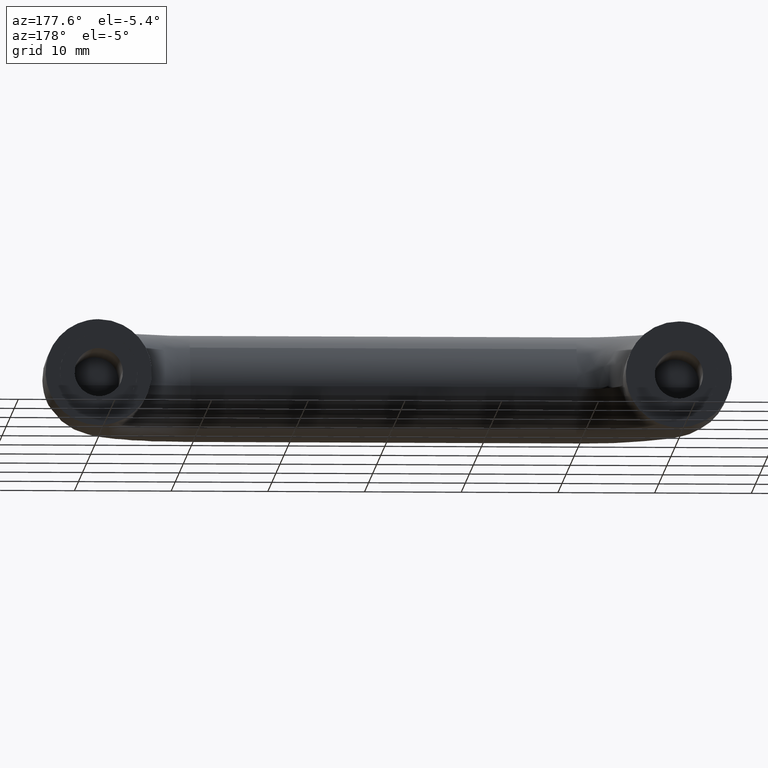
[diagram: clean part render]
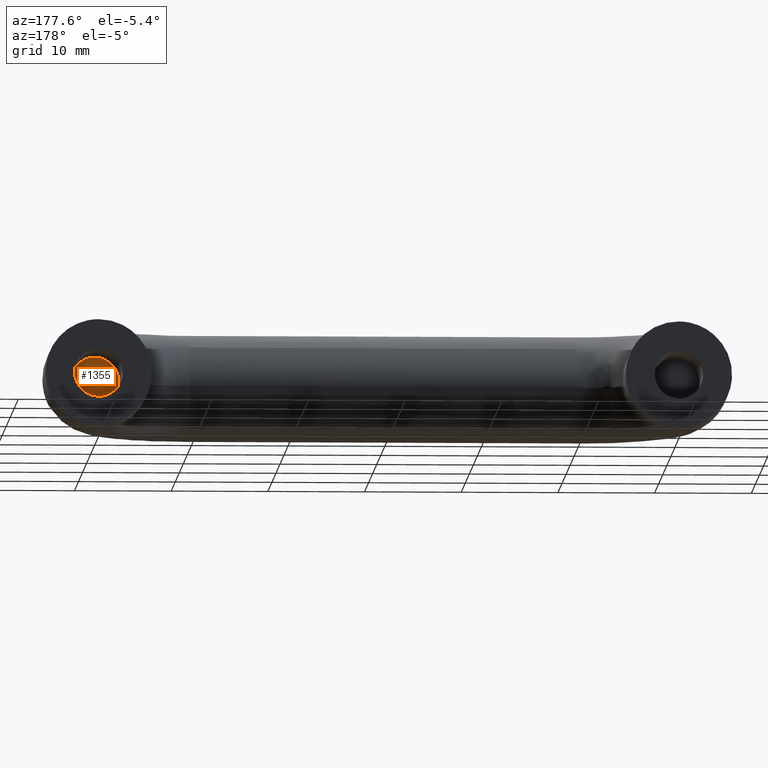
[diagram: same view with one face highlighted and labeled with its STEP entity id]
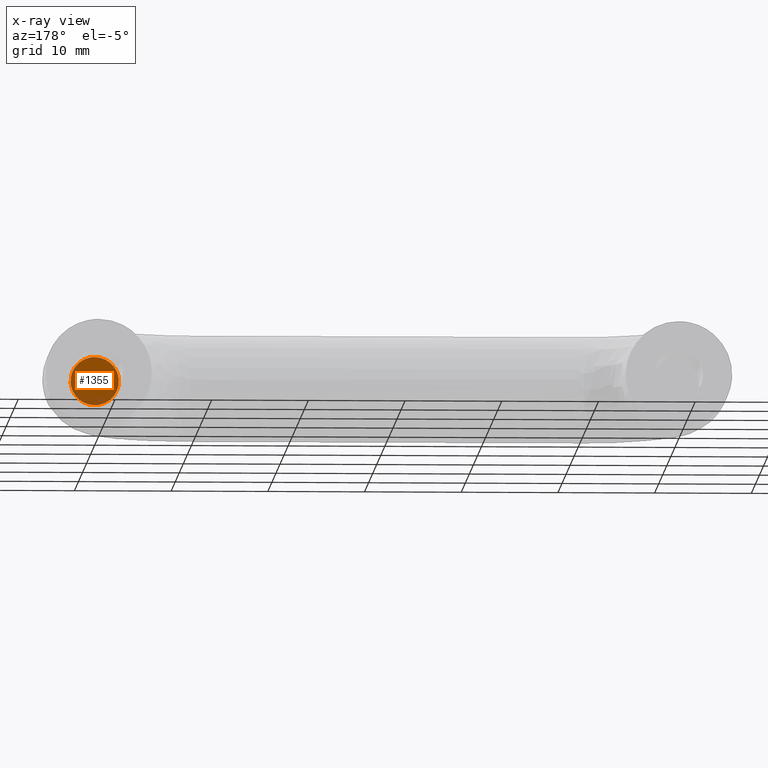
[diagram: x-ray of the same camera — body ghosted, the highlighted face saturated]
A machine part, auxiliary view. The second image highlights one B-rep face of the part: STEP entity #1355.
The next image is the same camera in x-ray: the body ghosted, the highlighted face saturated — about 26% of this face is hidden behind the body in this view.
In plain terms, the highlighted face is a freeform B-spline surface patch.
Its self-contained STEP definition (entity closure, byte-faithful):
#244=CARTESIAN_POINT('',(60.0,-10.0,2.500000000000000));
#245=VERTEX_POINT('',#244);
#246=CARTESIAN_POINT('',(57.507706665671108,-10.0,0.196147739369553));
#247=VERTEX_POINT('',#246);
#248=CARTESIAN_POINT('',(60.0,-10.0,2.500000000000000));
#249=CARTESIAN_POINT('',(57.689023770947372,-9.999999999999998,2.500000000000000));
#250=CARTESIAN_POINT('',(57.507706665671115,-10.0,0.196147739369553));
#258=(BOUNDED_CURVE()B_SPLINE_CURVE(2,(#248,#249,#250),.UNSPECIFIED.,.F.,.U.)B_SPLINE_CURVE_WITH_KNOTS((3,3),(0.0,0.236331300625897),.UNSPECIFIED.)CURVE()GEOMETRIC_REPRESENTATION_ITEM()RATIONAL_B_SPLINE_CURVE((1.0,0.723120658613245,0.969723356157479))REPRESENTATION_ITEM(''));
#259=EDGE_CURVE('',#245,#247,#258,.T.);
#300=CARTESIAN_POINT('',(62.492293334328892,-10.0,-0.196147739369553));
#301=VERTEX_POINT('',#300);
#307=CARTESIAN_POINT('',(62.492293334328885,-10.0,-0.196147739369553));
#308=CARTESIAN_POINT('',(62.500000000000007,-9.999999999999998,-0.098225267569345));
#309=CARTESIAN_POINT('',(62.500000000000000,-10.0,0.0));
#310=CARTESIAN_POINT('',(62.500000000000000,-10.000000000000002,2.500000000000000));
#311=CARTESIAN_POINT('',(60.0,-10.0,2.500000000000000));
#319=(BOUNDED_CURVE()B_SPLINE_CURVE(2,(#307,#308,#309,#310,#311),.UNSPECIFIED.,.F.,.U.)B_SPLINE_CURVE_WITH_KNOTS((3,2,3),(0.736331300625897,0.750000000000000,1.0),.UNSPECIFIED.)CURVE()GEOMETRIC_REPRESENTATION_ITEM()RATIONAL_B_SPLINE_CURVE((0.969723356157479,0.983986122573302,1.0,0.707106781186548,1.0))REPRESENTATION_ITEM(''));
#320=EDGE_CURVE('',#301,#245,#319,.T.);
#343=CARTESIAN_POINT('',(60.0,-10.0,-2.500000000000000));
#344=VERTEX_POINT('',#343);
#345=CARTESIAN_POINT('',(57.507706665671108,-10.000000000000002,0.196147739369554));
#346=CARTESIAN_POINT('',(57.499999999999993,-10.0,0.098225267569346));
#347=CARTESIAN_POINT('',(57.499999999999993,-10.0,0.0));
#348=CARTESIAN_POINT('',(57.499999999999986,-10.000000000000002,-2.500000000000000));
#349=CARTESIAN_POINT('',(60.0,-10.0,-2.500000000000000));
#357=(BOUNDED_CURVE()B_SPLINE_CURVE(2,(#345,#346,#347,#348,#349),.UNSPECIFIED.,.F.,.U.)B_SPLINE_CURVE_WITH_KNOTS((3,2,3),(0.236331300625897,0.250000000000000,0.500000000000000),.UNSPECIFIED.)CURVE()GEOMETRIC_REPRESENTATION_ITEM()RATIONAL_B_SPLINE_CURVE((0.969723356157478,0.983986122573302,1.0,0.707106781186548,1.0))REPRESENTATION_ITEM(''));
#358=EDGE_CURVE('',#247,#344,#357,.T.);
#360=CARTESIAN_POINT('',(60.0,-10.0,-2.500000000000000));
#361=CARTESIAN_POINT('',(62.310976229052599,-10.0,-2.500000000000000));
#362=CARTESIAN_POINT('',(62.492293334328885,-10.000000000000002,-0.196147739369553));
#370=(BOUNDED_CURVE()B_SPLINE_CURVE(2,(#360,#361,#362),.UNSPECIFIED.,.F.,.U.)B_SPLINE_CURVE_WITH_KNOTS((3,3),(0.500000000000000,0.736331300625896),.UNSPECIFIED.)CURVE()GEOMETRIC_REPRESENTATION_ITEM()RATIONAL_B_SPLINE_CURVE((1.0,0.723120658613246,0.969723356157477))REPRESENTATION_ITEM(''));
#371=EDGE_CURVE('',#344,#301,#370,.T.);
#1344=CARTESIAN_POINT('',(57.251013623274297,-10.0,2.749749990309030));
#1345=CARTESIAN_POINT('',(62.748986242615253,-10.0,2.749749990309030));
#1346=CARTESIAN_POINT('',(57.251013623274297,-10.0,-2.749750124419481));
#1347=CARTESIAN_POINT('',(62.748986242615253,-10.0,-2.749750124419481));
#1348=B_SPLINE_SURFACE_WITH_KNOTS('',1,1,((#1344,#1346),(#1345,#1347)),.UNSPECIFIED.,.F.,.F.,.U.,(2,2),(2,2),(0.0,5.497972619340949),(0.0,5.499500114728511),.UNSPECIFIED.);
#1349=ORIENTED_EDGE('',*,*,#320,.F.);
#1350=ORIENTED_EDGE('',*,*,#371,.F.);
#1351=ORIENTED_EDGE('',*,*,#358,.F.);
#1352=ORIENTED_EDGE('',*,*,#259,.F.);
#1353=EDGE_LOOP('',(#1349,#1350,#1351,#1352));
#1354=FACE_OUTER_BOUND('',#1353,.T.);
#1355=ADVANCED_FACE('',(#1354),#1348,.T.);